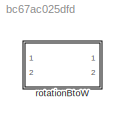
MODEL slx_bc67ac025dfd
KIND library
CONFIG AbsTol = auto
CONFIG EnableMultiTasking = off
CONFIG FixedStep = auto
CONFIG MaxStep = auto
CONFIG MinStep = auto
CONFIG RelTol = 1e-3
CONFIG SampleTimeConstraint = Unconstrained
CONFIG Solver = VariableStepAuto
CONFIG SolverName = VariableStepAuto
CONFIG StartTime = 0.0
CONFIG StopTime = 10.0
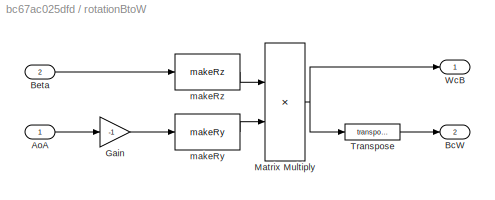
BLOCK [SubSystem] rotationBtoW
  Ports = [2, 2]
  RequestExecContextInheritance = off
BLOCK [Inport] rotationBtoW/AoA
BLOCK [Outport] rotationBtoW/BcW
  Port = 2
BLOCK [Inport] rotationBtoW/Beta
  Port = 2
BLOCK [Gain] rotationBtoW/Gain
  Gain = -1
BLOCK [Product] rotationBtoW/Matrix Multiply
  Multiplication = Matrix(*)
  Ports = [2, 1]
BLOCK [Math] rotationBtoW/Transpose
  Operator = transpose
  Ports = [1, 1]
BLOCK [Outport] rotationBtoW/WcB
BLOCK [Reference] rotationBtoW/makeRy  REF=rotationAboutY/makeRy
  Ports = [1, 1]
  SourceBlock = rotationAboutY/makeRy
  SourceType = SubSystem
BLOCK [Reference] rotationBtoW/makeRz  REF=rotationAboutZ/makeRz
  Ports = [1, 1]
  SourceBlock = rotationAboutZ/makeRz
  SourceType = SubSystem
LINE rotationBtoW/AoA:1 -> rotationBtoW/Gain:1
LINE rotationBtoW/Beta:1 -> rotationBtoW/makeRz:1
LINE rotationBtoW/Gain:1 -> rotationBtoW/makeRy:1
NET rotationBtoW/Matrix Multiply:1 -> rotationBtoW/Transpose:1, rotationBtoW/WcB:1
LINE rotationBtoW/Transpose:1 -> rotationBtoW/BcW:1
LINE rotationBtoW/makeRy:1 -> rotationBtoW/Matrix Multiply:2
LINE rotationBtoW/makeRz:1 -> rotationBtoW/Matrix Multiply:1
note: NET lines group one-source signal fan-out (src -> all destinations, sorted); 1:1 wires keep LINE
